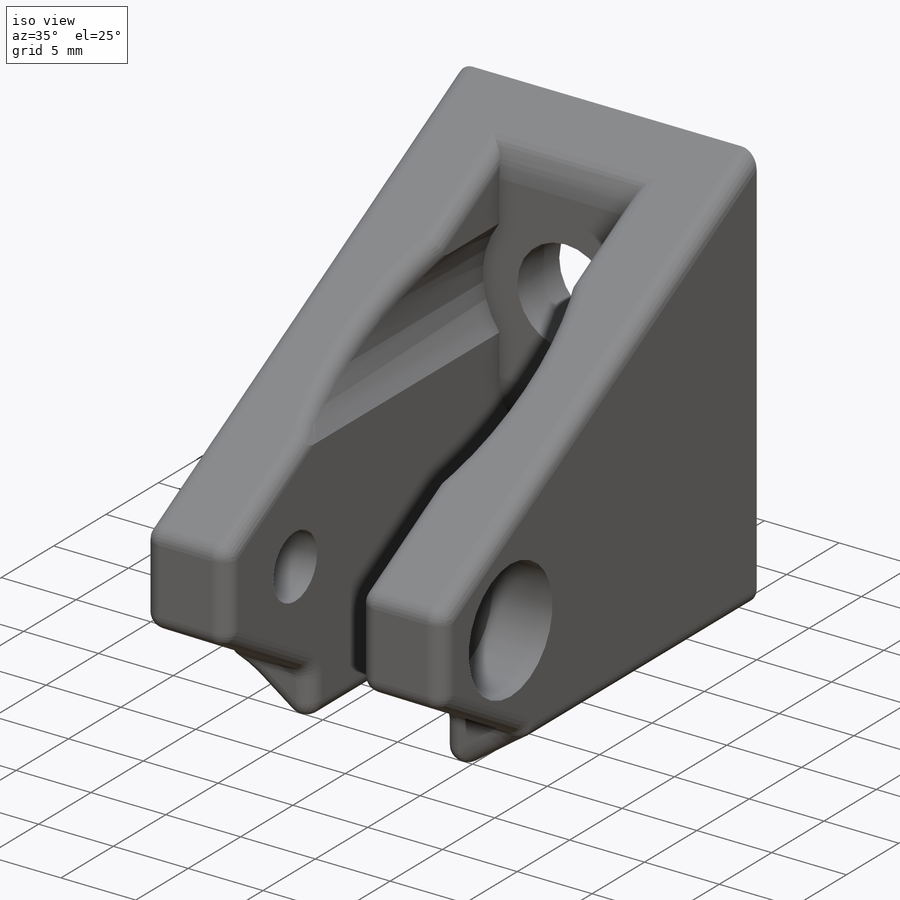
[diagram: iso view]
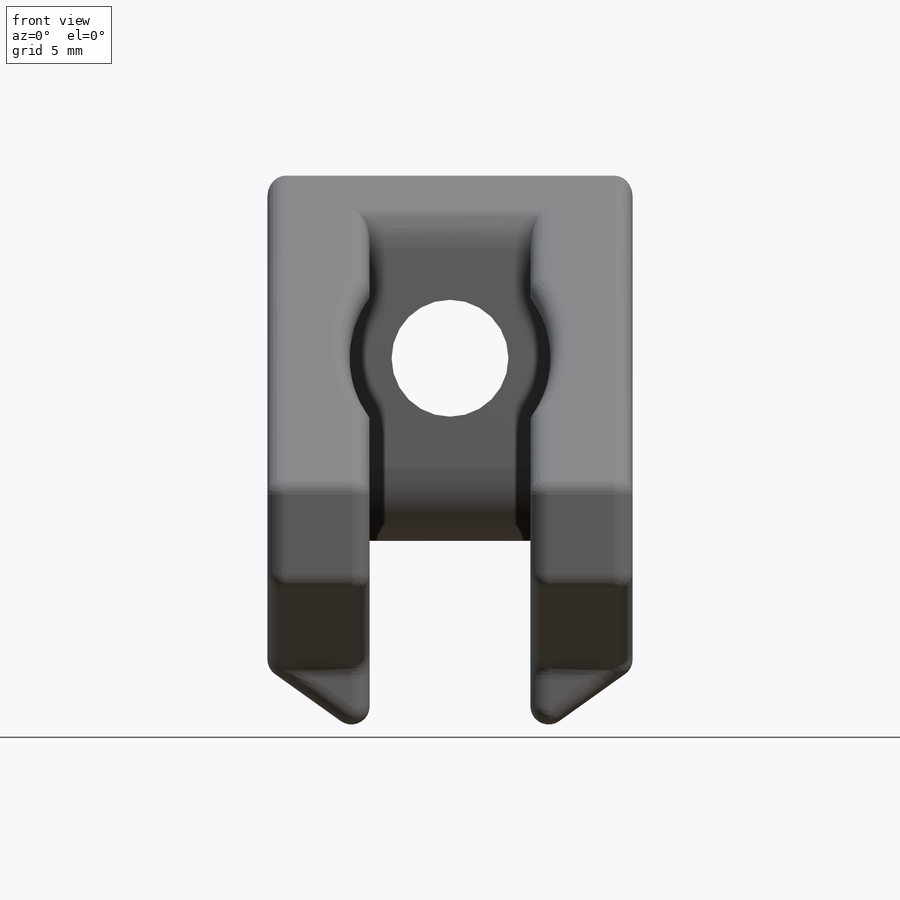
[diagram: front view]
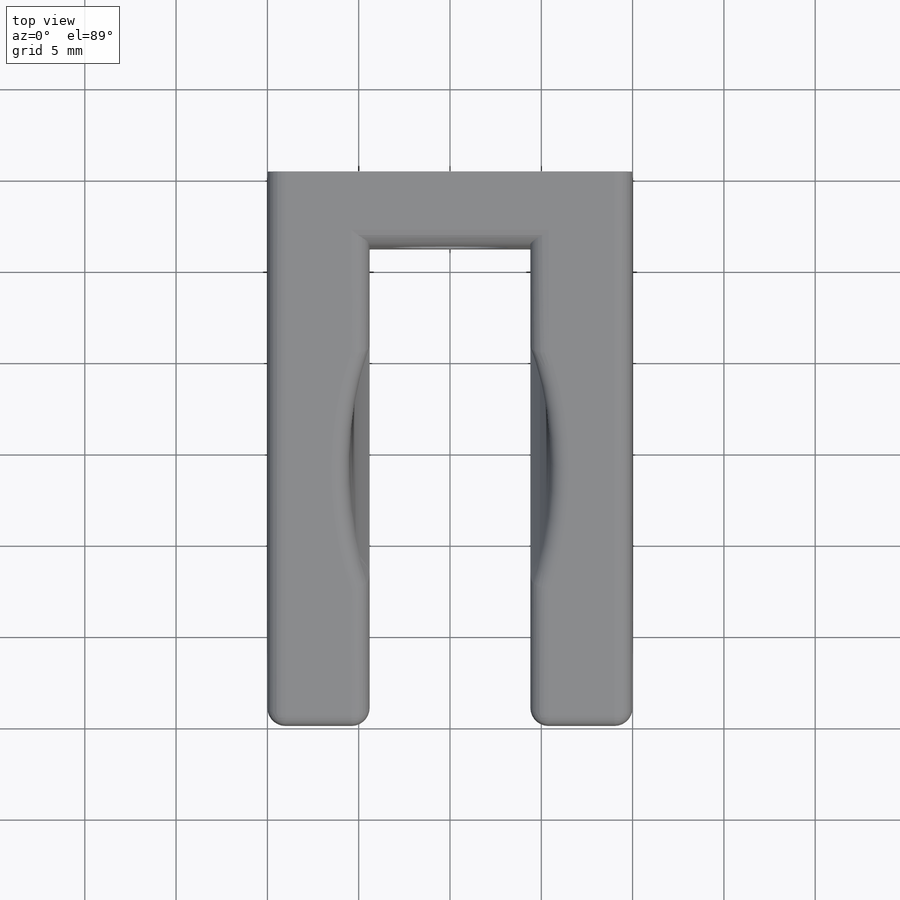
[diagram: top view]
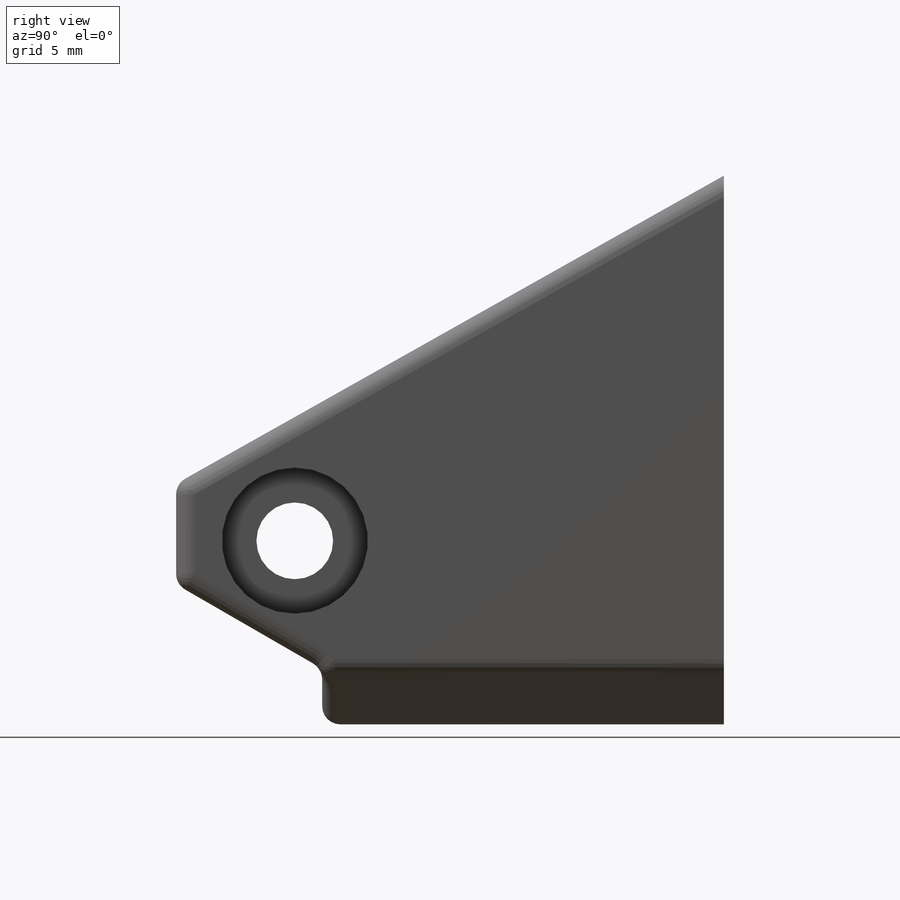
[diagram: right view]
SOLIDWORKS PART (.sldprt)
format: sldprt  version: not decoded by parser v0  size: 432,128 bytes
history: native  units: mm
features: sketch x9, cut_extrude x6, plane x3, extrude x3, chamfer x2, material x1, fillet x1 (+8 scaffold rows collapsed)
feature tree (33):
  scaffold x8  (default folders/planes/origin — collapsed)
  material  "Matériau <non spécifié>"
  plane  "Plan de face"
  plane  "Plan de dessus"
  plane  "Plan de droite"
  sketch  "Esquisse1"  dims[D1=34.0mm D2=10.0mm D3=20.0mm D4=17.0mm]
  extrude  "Boss.-Extru.1"  Depth=4mm
  sketch  "Esquisse2"  dims[D1=8.8mm D2=5.6mm D3=5.6mm D4=8.8mm D5=20.0mm D6=~5.696546mm]
  cut_extrude  "Enlèv. mat.-Extru.1"  [1 undecoded]
  fillet  "Congé1"  Radius=4mm
  sketch  "Esquisse3"
  extrude  "Boss.-Extru.2"  Depth=26mm
  sketch  "Esquisse4"  dims[D1=4.2mm D2=4.2mm D3=20.0mm D4=7.0mm D5=6.5mm D6=6.5mm]
  cut_extrude  "Enlèv. mat.-Extru.2"  [1 undecoded]
  chamfer  "Chanfrein1"  Distance=8mm Angle=30deg
  sketch  "Esquisse5"  dims[D1=6.4mm]
  cut_extrude  "Enlèv. mat.-Extru.3"  [1 undecoded]
  sketch  "Esquisse6"  dims[D1=11.0mm]
  cut_extrude  "Enlèv. mat.-Extru.4"  [1 undecoded]
  sketch  "Esquisse7"  dims[D1=8.0mm D2=8.0mm]
  cut_extrude  "Enlèv. mat.-Extru.5"  Depth=4mm
  sketch  "Esquisse8"  dims[D1=4.0mm D2=4.0mm D3=4.0mm]
  extrude  "Boss.-Extru.3"  [1 undecoded]
  sketch  "Esquisse9"  dims[D1=0.0mm D2=12.0mm D3=32.0mm D4=30.0mm]
  cut_extrude  "Enlèv. mat.-Extru.6"  Depth=20mm
  chamfer  "Congé2"  Distance=1mm
decode coverage: 15 of 21 modeling features carry decoded parameters
note: ~ marks probable driven/reference dimensions
note: 5 parameter values undecoded
summary: no parameter record found for 5 features
note: suppression state not decoded; provenance and decode notes live in map.json
